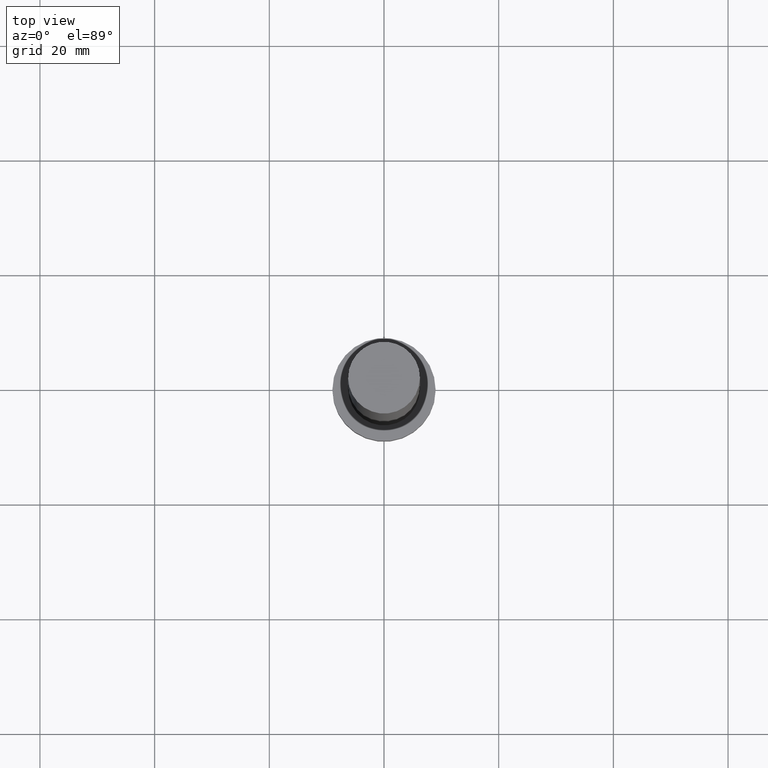
[diagram: clean part render]
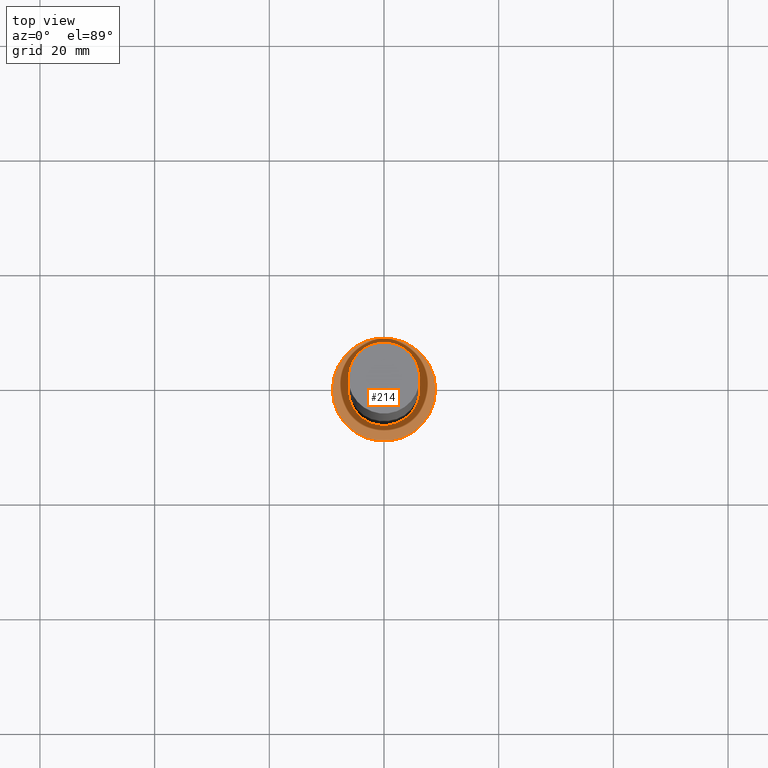
[diagram: same view with one face highlighted and labeled with its STEP entity id]
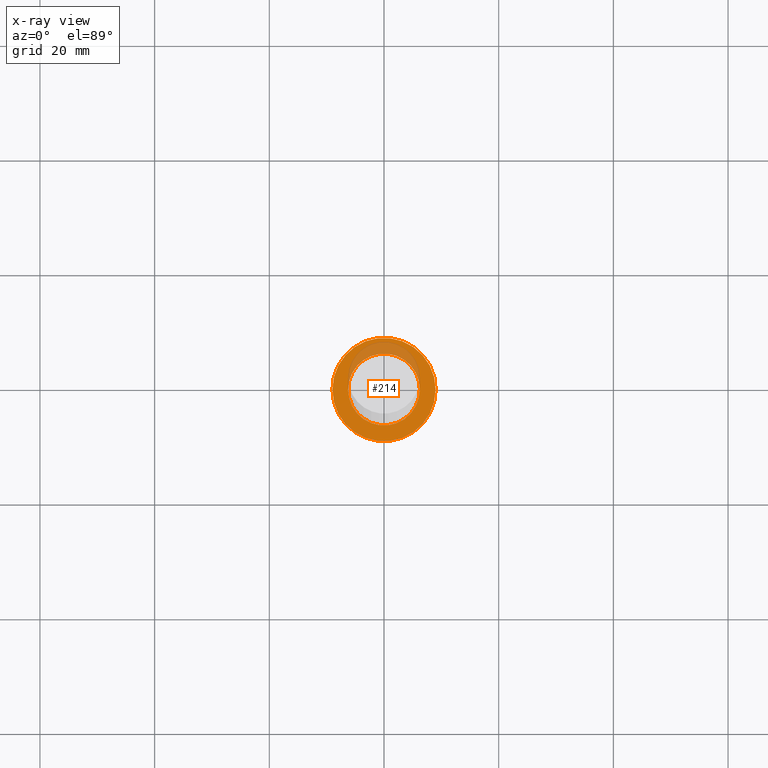
[diagram: x-ray of the same camera — body ghosted, the highlighted face saturated]
A machine part, top view. The second image highlights one B-rep face of the part: STEP entity #214.
The next image is the same camera in x-ray: the body ghosted, the highlighted face saturated — about 20% of this face is hidden behind the body in this view.
In plain terms, the highlighted planar face has unit normal (0, 0, 1).
Its self-contained STEP definition (entity closure, byte-faithful):
#2 = CARTESIAN_POINT ( 'NONE',  ( 6.250000000000000000, 7.654042494670957606E-16, 7.000000000000000000 ) ) ;
#5 = PLANE ( 'NONE',  #100 ) ;
#7 = ORIENTED_EDGE ( 'NONE', *, *, #29, .T. ) ;
#9 = CIRCLE ( 'NONE', #150, 9.000000000000000000 ) ;
#23 = DIRECTION ( 'NONE',  ( 0.000000000000000000, 0.000000000000000000, 1.000000000000000000 ) ) ;
#29 = EDGE_CURVE ( 'NONE', #172, #48, #218, .T. ) ;
#30 = CARTESIAN_POINT ( 'NONE',  ( 0.000000000000000000, 0.000000000000000000, 7.000000000000000000 ) ) ;
#32 = DIRECTION ( 'NONE',  ( 1.000000000000000000, 0.000000000000000000, 0.000000000000000000 ) ) ;
#35 = VERTEX_POINT ( 'NONE', #114 ) ;
#40 = DIRECTION ( 'NONE',  ( 0.000000000000000000, 0.000000000000000000, 1.000000000000000000 ) ) ;
#42 = FACE_BOUND ( 'NONE', #149, .T. ) ;
#46 = ORIENTED_EDGE ( 'NONE', *, *, #182, .F. ) ;
#48 = VERTEX_POINT ( 'NONE', #178 ) ;
#50 = EDGE_LOOP ( 'NONE', ( #7, #167 ) ) ;
#55 = DIRECTION ( 'NONE',  ( 1.000000000000000000, 0.000000000000000000, 0.000000000000000000 ) ) ;
#66 = CIRCLE ( 'NONE', #159, 6.250000000000000000 ) ;
#67 = ORIENTED_EDGE ( 'NONE', *, *, #197, .F. ) ;
#75 = DIRECTION ( 'NONE',  ( 0.000000000000000000, 0.000000000000000000, 1.000000000000000000 ) ) ;
#88 = VERTEX_POINT ( 'NONE', #2 ) ;
#90 = EDGE_CURVE ( 'NONE', #48, #172, #9, .T. ) ;
#99 = CARTESIAN_POINT ( 'NONE',  ( 0.000000000000000000, 0.000000000000000000, 7.000000000000000000 ) ) ;
#100 = AXIS2_PLACEMENT_3D ( 'NONE', #225, #23, #246 ) ;
#103 = DIRECTION ( 'NONE',  ( 1.000000000000000000, 0.000000000000000000, 0.000000000000000000 ) ) ;
#114 = CARTESIAN_POINT ( 'NONE',  ( -6.250000000000000000, 0.000000000000000000, 7.000000000000000000 ) ) ;
#123 = CARTESIAN_POINT ( 'NONE',  ( 0.000000000000000000, 0.000000000000000000, 7.000000000000000000 ) ) ;
#143 = DIRECTION ( 'NONE',  ( 0.000000000000000000, 0.000000000000000000, 1.000000000000000000 ) ) ;
#145 = DIRECTION ( 'NONE',  ( 1.000000000000000000, 0.000000000000000000, 0.000000000000000000 ) ) ;
#149 = EDGE_LOOP ( 'NONE', ( #67, #46 ) ) ;
#150 = AXIS2_PLACEMENT_3D ( 'NONE', #99, #75, #55 ) ;
#159 = AXIS2_PLACEMENT_3D ( 'NONE', #164, #143, #145 ) ;
#160 = FACE_OUTER_BOUND ( 'NONE', #50, .T. ) ;
#162 = CARTESIAN_POINT ( 'NONE',  ( -9.000000000000000000, 0.000000000000000000, 7.000000000000000000 ) ) ;
#163 = AXIS2_PLACEMENT_3D ( 'NONE', #30, #196, #32 ) ;
#164 = CARTESIAN_POINT ( 'NONE',  ( 0.000000000000000000, 0.000000000000000000, 7.000000000000000000 ) ) ;
#167 = ORIENTED_EDGE ( 'NONE', *, *, #90, .T. ) ;
#172 = VERTEX_POINT ( 'NONE', #162 ) ;
#178 = CARTESIAN_POINT ( 'NONE',  ( 9.000000000000000000, 1.102182119232617714E-15, 7.000000000000000000 ) ) ;
#182 = EDGE_CURVE ( 'NONE', #88, #35, #250, .T. ) ;
#196 = DIRECTION ( 'NONE',  ( 0.000000000000000000, 0.000000000000000000, 1.000000000000000000 ) ) ;
#197 = EDGE_CURVE ( 'NONE', #35, #88, #66, .T. ) ;
#214 = ADVANCED_FACE ( 'NONE', ( #42, #160 ), #5, .T. ) ;
#218 = CIRCLE ( 'NONE', #163, 9.000000000000000000 ) ;
#225 = CARTESIAN_POINT ( 'NONE',  ( 0.000000000000000000, 0.000000000000000000, 7.000000000000000000 ) ) ;
#235 = AXIS2_PLACEMENT_3D ( 'NONE', #123, #40, #103 ) ;
#246 = DIRECTION ( 'NONE',  ( 1.000000000000000000, 0.000000000000000000, -0.000000000000000000 ) ) ;
#250 = CIRCLE ( 'NONE', #235, 6.250000000000000000 ) ;